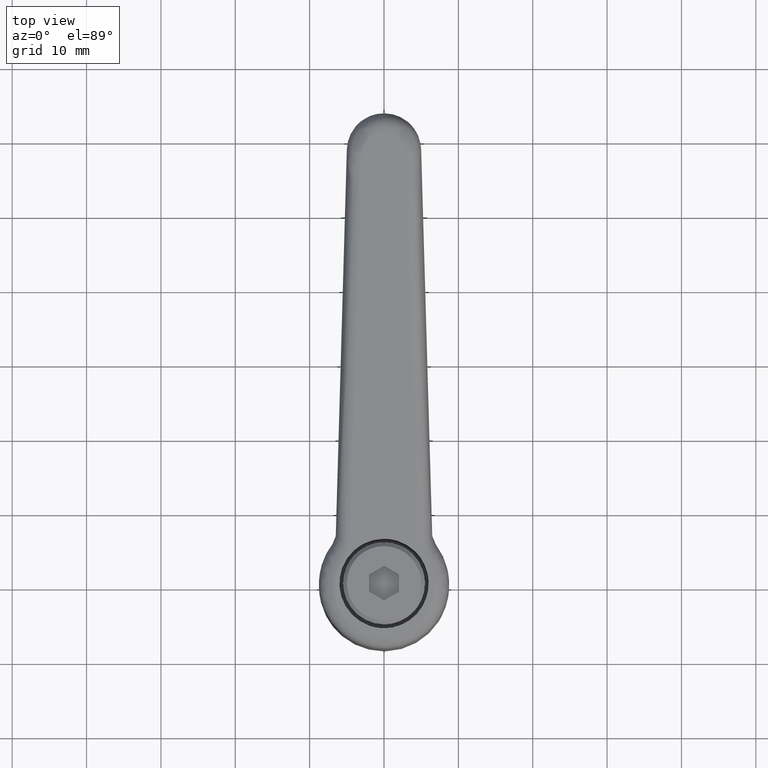
[diagram: clean part render]
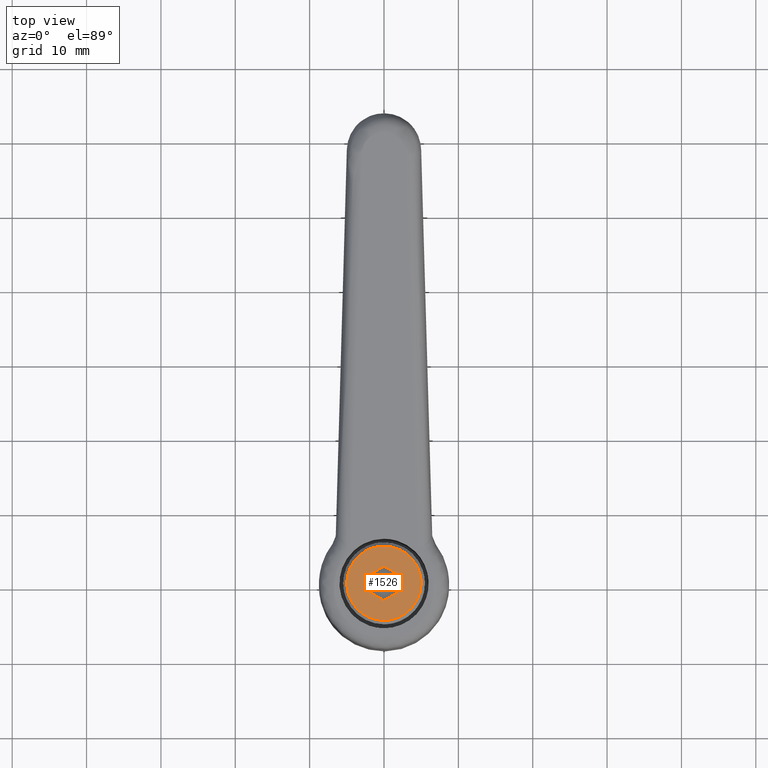
[diagram: same view with one face highlighted and labeled with its STEP entity id]
A machine part, top view. The second image highlights one B-rep face of the part: STEP entity #1526.
In plain terms, the highlighted face is a freeform B-spline surface patch.
Its self-contained STEP definition (entity closure, byte-faithful):
#1171=CARTESIAN_POINT('',(-3.228710363969029,-3.817778418152384,30.999999911182901));
#1172=VERTEX_POINT('',#1171);
#1178=CARTESIAN_POINT('',(-5.0,0.0,31.0));
#1179=VERTEX_POINT('',#1178);
#1180=CARTESIAN_POINT('',(-3.228710363969029,-3.817778418152384,30.999999911182901));
#1181=CARTESIAN_POINT('',(-3.626273929556618,-3.481945845904455,30.999999918995769));
#1182=CARTESIAN_POINT('',(-4.120059306369288,-2.909880589387203,30.999999932304242));
#1183=CARTESIAN_POINT('',(-4.599082391219003,-2.008803177045357,30.999999953267078));
#1184=CARTESIAN_POINT('',(-4.908969529938280,-1.131201606084471,30.999999973683671));
#1185=CARTESIAN_POINT('',(-5.000126318574402,-0.429889279790171,30.999999989998990));
#1186=CARTESIAN_POINT('',(-5.0,0.0,31.0));
#1187=B_SPLINE_CURVE_WITH_KNOTS('',3,(#1180,#1181,#1182,#1183,#1184,#1185,#1186),.UNSPECIFIED.,.F.,.U.,(4,1,1,1,4),(0.000000019663043,1.561147409084243,2.239887957710833,3.054403910222879,4.344041582337677),.UNSPECIFIED.);
#1188=EDGE_CURVE('',#1172,#1179,#1187,.T.);
#1190=CARTESIAN_POINT('',(0.000000720537488,4.999999999999949,31.0));
#1191=VERTEX_POINT('',#1190);
#1192=CARTESIAN_POINT('',(-5.0,0.0,31.0));
#1193=CARTESIAN_POINT('',(-5.000019048868588,0.286336390432915,31.0));
#1194=CARTESIAN_POINT('',(-4.945414700909888,0.920386076927237,31.000000000000039));
#1195=CARTESIAN_POINT('',(-4.709963614555272,1.751376589233098,30.999999999999989));
#1196=CARTESIAN_POINT('',(-4.319287009543745,2.564395085690999,31.000000000000071));
#1197=CARTESIAN_POINT('',(-3.810453954828076,3.286929915592188,30.999999999999879));
#1198=CARTESIAN_POINT('',(-3.066234466787943,3.995510335555250,31.000000000000011));
#1199=CARTESIAN_POINT('',(-2.190271106377184,4.535256794304576,30.999999999999979));
#1200=CARTESIAN_POINT('',(-1.145331439629552,4.909131167032099,31.000000000000139));
#1201=CARTESIAN_POINT('',(-0.409062707206158,5.000095808495424,30.999999999999609));
#1202=CARTESIAN_POINT('',(0.000000720537488,4.999999999999949,31.0));
#1203=B_SPLINE_CURVE_WITH_KNOTS('',3,(#1192,#1193,#1194,#1195,#1196,#1197,#1198,#1199,#1200,#1201,#1202),.UNSPECIFIED.,.F.,.U.,(4,1,1,1,1,1,1,1,4),(0.000000064309770,0.859016537962499,1.902148175241988,2.577114868623893,3.558884288410043,4.540591254645197,5.645084697314609,6.626850855148852,7.854031320487564),.UNSPECIFIED.);
#1204=EDGE_CURVE('',#1179,#1191,#1203,.T.);
#1206=CARTESIAN_POINT('',(5.0,0.0,31.0));
#1207=VERTEX_POINT('',#1206);
#1208=CARTESIAN_POINT('',(0.000000720537488,4.999999999999949,31.0));
#1209=CARTESIAN_POINT('',(0.409066505729339,5.000079870549714,31.000000000000039));
#1210=CARTESIAN_POINT('',(1.227158020398464,4.899074656966985,30.999999999999979));
#1211=CARTESIAN_POINT('',(2.226946471590979,4.513433746365888,31.0));
#1212=CARTESIAN_POINT('',(3.006606326029526,4.019602405710407,31.000000000000060));
#1213=CARTESIAN_POINT('',(3.562937214097995,3.533711592106358,30.999999999999918));
#1214=CARTESIAN_POINT('',(4.161282653638570,2.831573650928646,31.000000000000270));
#1215=CARTESIAN_POINT('',(4.633866896313407,1.985296670301988,30.999999999999801));
#1216=CARTESIAN_POINT('',(4.937514109125615,0.961268247157415,30.999999999999989));
#1217=CARTESIAN_POINT('',(5.000044257369490,0.327246765177405,31.000000000000039));
#1218=CARTESIAN_POINT('',(5.0,0.0,31.0));
#1219=B_SPLINE_CURVE_WITH_KNOTS('',3,(#1208,#1209,#1210,#1211,#1212,#1213,#1214,#1215,#1216,#1217,#1218),.UNSPECIFIED.,.F.,.U.,(4,1,1,1,1,1,1,1,4),(0.000000064559036,1.227190063780014,2.454388132413173,3.190710081034211,3.988353726075907,4.663323020217803,5.951883635231869,6.872292857711072,7.854030508268788),.UNSPECIFIED.);
#1220=EDGE_CURVE('',#1191,#1207,#1219,.T.);
#1222=CARTESIAN_POINT('',(3.626871659332509,-3.441772692729330,31.000000089943711));
#1223=VERTEX_POINT('',#1222);
#1224=CARTESIAN_POINT('',(5.0,0.0,31.0));
#1225=CARTESIAN_POINT('',(5.000148219115720,-0.454755654634920,31.000000011884140));
#1226=CARTESIAN_POINT('',(4.888623161541693,-1.265293491014163,31.000000033065799));
#1227=CARTESIAN_POINT('',(4.417068663202686,-2.447297690410228,31.000000063955220));
#1228=CARTESIAN_POINT('',(3.940009250836811,-3.112008184504153,31.000000081325940));
#1229=CARTESIAN_POINT('',(3.626871659332509,-3.441772692729330,31.000000089943711));
#1230=B_SPLINE_CURVE_WITH_KNOTS('',3,(#1224,#1225,#1226,#1227,#1228,#1229),.UNSPECIFIED.,.F.,.U.,(4,1,1,4),(0.000000019866176,1.364235307709736,2.431877990289316,3.796113278116173),.UNSPECIFIED.);
#1231=EDGE_CURVE('',#1207,#1223,#1230,.T.);
#1262=CARTESIAN_POINT('',(-0.000000720537561,-4.999999999999948,31.0));
#1263=VERTEX_POINT('',#1262);
#1264=CARTESIAN_POINT('',(3.626871659332509,-3.441772692729330,31.000000089943711));
#1265=CARTESIAN_POINT('',(3.423209227543420,-3.656413632926204,31.000000084893060));
#1266=CARTESIAN_POINT('',(2.929909212266848,-4.091523937404155,31.000000072659638));
#1267=CARTESIAN_POINT('',(2.010872320772938,-4.625498292130499,31.000000049868039));
#1268=CARTESIAN_POINT('',(0.993340357072911,-4.937983109773543,31.000000024634339));
#1269=CARTESIAN_POINT('',(0.295885212770446,-5.000008945553848,31.000000007337650));
#1270=CARTESIAN_POINT('',(-0.000000720537561,-4.999999999999948,31.0));
#1271=B_SPLINE_CURVE_WITH_KNOTS('',3,(#1264,#1265,#1266,#1267,#1268,#1269,#1270),.UNSPECIFIED.,.F.,.U.,(4,1,1,1,4),(0.000000020338347,0.887669097080123,1.965564813826743,3.170249232331469,4.057918309073918),.UNSPECIFIED.);
#1272=EDGE_CURVE('',#1223,#1263,#1271,.T.);
#1274=CARTESIAN_POINT('',(-0.000000720537561,-4.999999999999948,31.0));
#1275=CARTESIAN_POINT('',(-0.310777280857470,-5.000016821643897,30.999999991450970));
#1276=CARTESIAN_POINT('',(-1.005465808273967,-4.935076678590801,30.999999972341179));
#1277=CARTESIAN_POINT('',(-2.130070391463800,-4.585236097457107,30.999999941404791));
#1278=CARTESIAN_POINT('',(-2.865885890629291,-4.124843871478637,30.999999921163880));
#1279=CARTESIAN_POINT('',(-3.228710363969029,-3.817778418152384,30.999999911182901));
#1280=B_SPLINE_CURVE_WITH_KNOTS('',3,(#1274,#1275,#1276,#1277,#1278,#1279),.UNSPECIFIED.,.F.,.U.,(4,1,1,4),(0.000000015470339,0.932341857031237,2.084052889149244,3.509990487663724),.UNSPECIFIED.);
#1281=EDGE_CURVE('',#1263,#1172,#1280,.T.);
#1342=CARTESIAN_POINT('',(-1.154701000000102,-2.0,31.0));
#1343=VERTEX_POINT('',#1342);
#1344=CARTESIAN_POINT('',(-2.309402000000205,0.0,31.0));
#1345=VERTEX_POINT('',#1344);
#1346=CARTESIAN_POINT('',(-1.154701000000102,-2.0,31.0));
#1347=CARTESIAN_POINT('',(-2.309402000000205,0.0,31.0));
#1348=QUASI_UNIFORM_CURVE('',1,(#1346,#1347),.UNSPECIFIED.,.F.,.U.);
#1349=EDGE_CURVE('',#1343,#1345,#1348,.T.);
#1370=CARTESIAN_POINT('',(1.154701000000000,-2.0,31.0));
#1371=VERTEX_POINT('',#1370);
#1372=CARTESIAN_POINT('',(1.154701000000000,-2.0,31.0));
#1373=CARTESIAN_POINT('',(-1.154701000000102,-2.0,31.0));
#1374=QUASI_UNIFORM_CURVE('',1,(#1372,#1373),.UNSPECIFIED.,.F.,.U.);
#1375=EDGE_CURVE('',#1371,#1343,#1374,.T.);
#1392=CARTESIAN_POINT('',(2.309402000000000,0.0,31.0));
#1393=VERTEX_POINT('',#1392);
#1394=CARTESIAN_POINT('',(2.309402000000000,0.0,31.0));
#1395=CARTESIAN_POINT('',(1.154701000000000,-2.0,31.0));
#1396=QUASI_UNIFORM_CURVE('',1,(#1394,#1395),.UNSPECIFIED.,.F.,.U.);
#1397=EDGE_CURVE('',#1393,#1371,#1396,.T.);
#1414=CARTESIAN_POINT('',(1.154701000000000,2.0,31.0));
#1415=VERTEX_POINT('',#1414);
#1416=CARTESIAN_POINT('',(1.154701000000000,2.0,31.0));
#1417=CARTESIAN_POINT('',(2.309402000000000,0.0,31.0));
#1418=QUASI_UNIFORM_CURVE('',1,(#1416,#1417),.UNSPECIFIED.,.F.,.U.);
#1419=EDGE_CURVE('',#1415,#1393,#1418,.T.);
#1436=CARTESIAN_POINT('',(-1.154701000000102,2.0,31.0));
#1437=VERTEX_POINT('',#1436);
#1438=CARTESIAN_POINT('',(-1.154701000000102,2.0,31.0));
#1439=CARTESIAN_POINT('',(1.154701000000000,2.0,31.0));
#1440=QUASI_UNIFORM_CURVE('',1,(#1438,#1439),.UNSPECIFIED.,.F.,.U.);
#1441=EDGE_CURVE('',#1437,#1415,#1440,.T.);
#1458=CARTESIAN_POINT('',(-2.309402000000205,0.0,31.0));
#1459=CARTESIAN_POINT('',(-1.154701000000102,2.0,31.0));
#1460=QUASI_UNIFORM_CURVE('',1,(#1458,#1459),.UNSPECIFIED.,.F.,.U.);
#1461=EDGE_CURVE('',#1345,#1437,#1460,.T.);
#1505=CARTESIAN_POINT('',(-5.499499980618060,-5.499499980618002,31.0));
#1506=CARTESIAN_POINT('',(5.499500248838961,-5.499499980618002,31.0));
#1507=CARTESIAN_POINT('',(-5.499499980618060,5.499500248838904,31.0));
#1508=CARTESIAN_POINT('',(5.499500248838961,5.499500248838904,31.0));
#1509=B_SPLINE_SURFACE_WITH_KNOTS('',1,1,((#1505,#1507),(#1506,#1508)),.UNSPECIFIED.,.F.,.F.,.U.,(2,2),(2,2),(0.0,10.999000229457019),(0.0,10.999000229456909),.UNSPECIFIED.);
#1510=ORIENTED_EDGE('',*,*,#1188,.F.);
#1511=ORIENTED_EDGE('',*,*,#1281,.F.);
#1512=ORIENTED_EDGE('',*,*,#1272,.F.);
#1513=ORIENTED_EDGE('',*,*,#1231,.F.);
#1514=ORIENTED_EDGE('',*,*,#1220,.F.);
#1515=ORIENTED_EDGE('',*,*,#1204,.F.);
#1516=EDGE_LOOP('',(#1510,#1511,#1512,#1513,#1514,#1515));
#1517=FACE_OUTER_BOUND('',#1516,.T.);
#1518=ORIENTED_EDGE('',*,*,#1349,.T.);
#1519=ORIENTED_EDGE('',*,*,#1461,.T.);
#1520=ORIENTED_EDGE('',*,*,#1441,.T.);
#1521=ORIENTED_EDGE('',*,*,#1419,.T.);
#1522=ORIENTED_EDGE('',*,*,#1397,.T.);
#1523=ORIENTED_EDGE('',*,*,#1375,.T.);
#1524=EDGE_LOOP('',(#1518,#1519,#1520,#1521,#1522,#1523));
#1525=FACE_BOUND('',#1524,.T.);
#1526=ADVANCED_FACE('',(#1517,#1525),#1509,.T.);